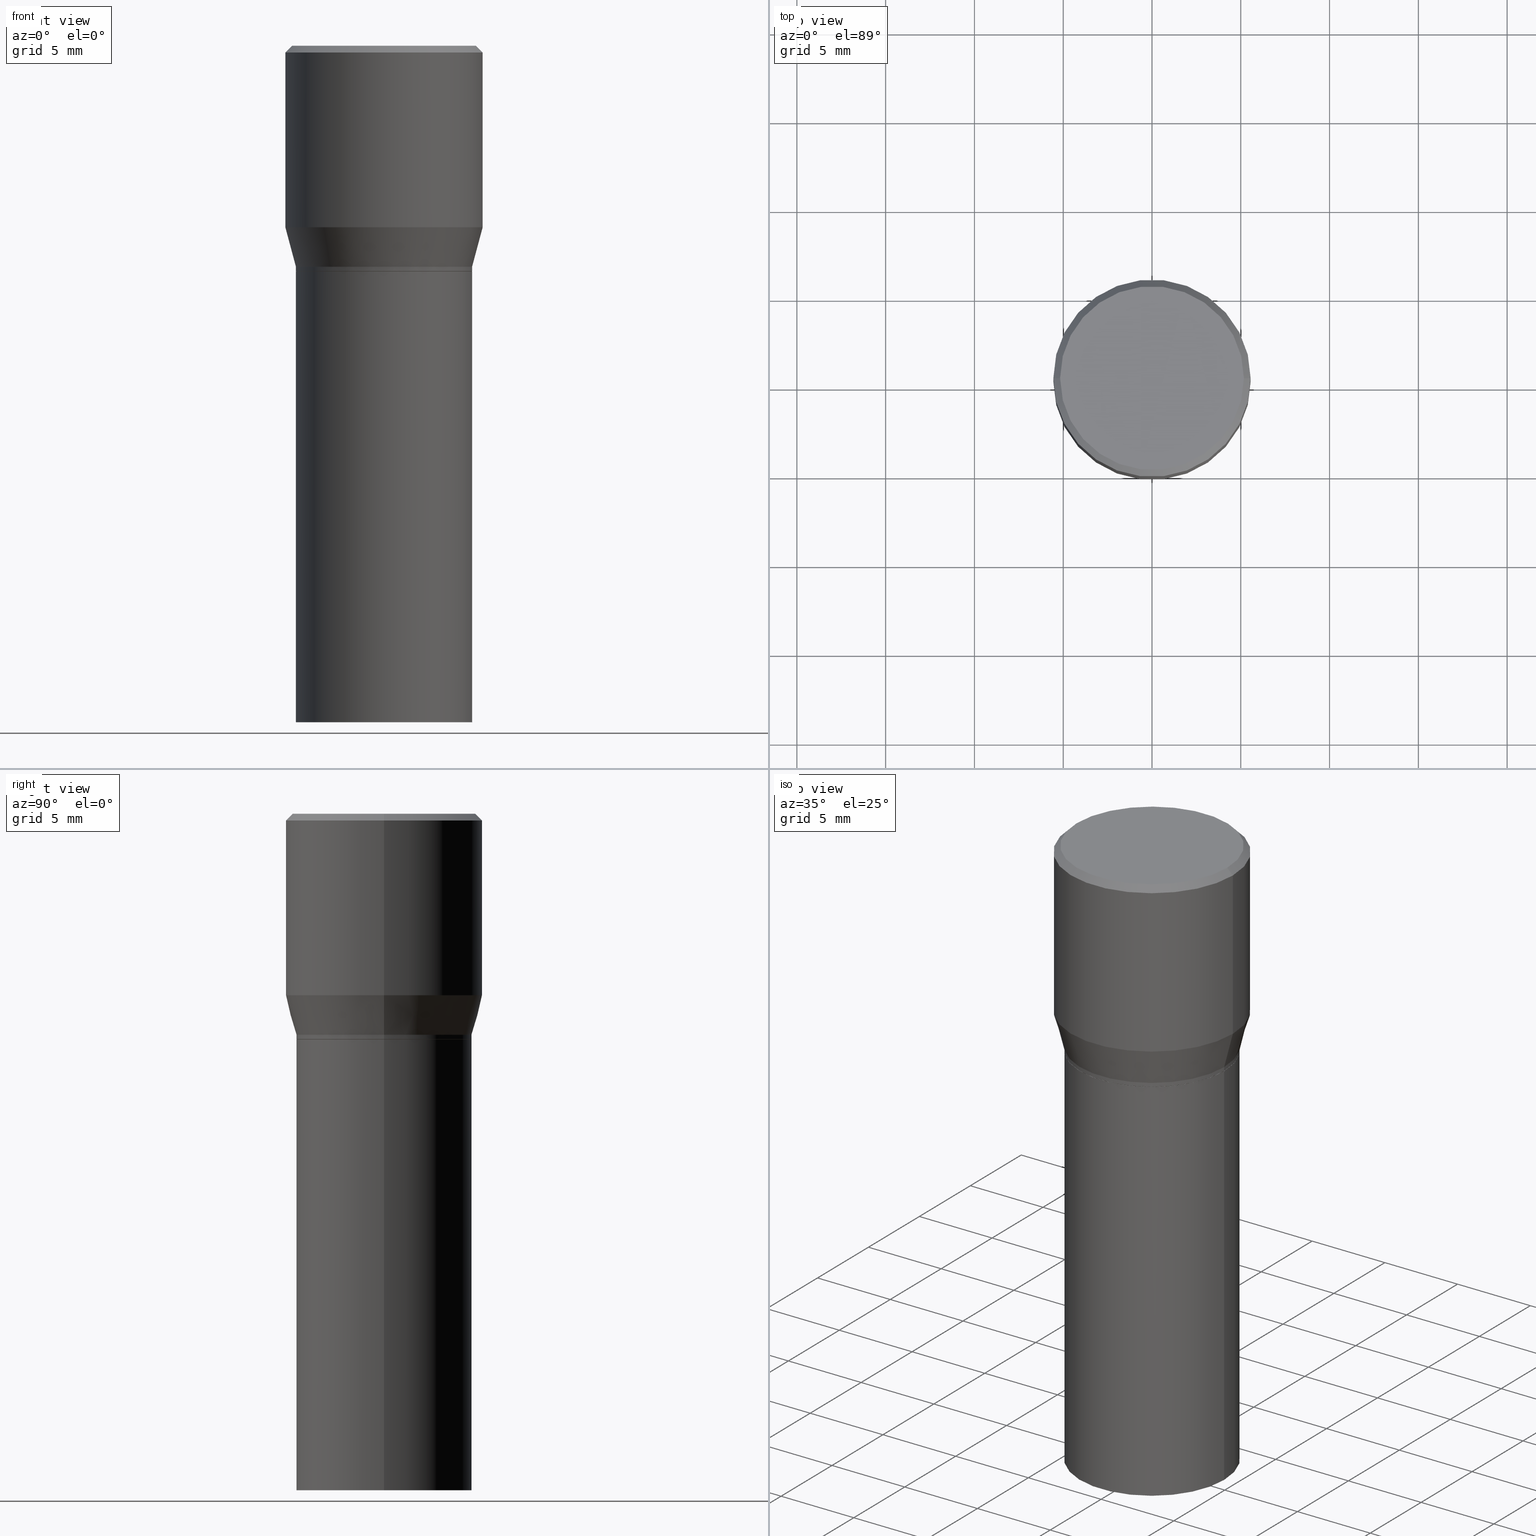
[diagram: canonical four-view strip — front | top / right | iso, engineering-drawing reading convention]
A machine part, canonical four-view strip (front | top / right | iso — engineering-drawing reading convention). The complete STEP part file that produces these views, byte-faithful:
ISO-10303-21;
HEADER;
FILE_DESCRIPTION (( 'STEP AP203' ),
    '1' );
FILE_NAME ('39749.STEP',
    '2024-03-12T19:07:14',
    ( '' ),
    ( '' ),
    'SwSTEP 2.0',
    'SolidWorks 2023',
    '' );
FILE_SCHEMA (( 'CONFIG_CONTROL_DESIGN' ));
ENDSEC;

DATA;
#1 = CARTESIAN_POINT ( 'NONE',  ( 0.1953000000000000014, -3.107767539704279377E-15, -0.4995000000000001661 ) ) ;
#2 = DIRECTION ( 'NONE',  ( 1.000000000000000000, -6.982962677686266711E-15, 0.000000000000000000 ) ) ;
#3 = VECTOR ( 'NONE', #344, 39.37007874015748143 ) ;
#4 = ORIENTED_EDGE ( 'NONE', *, *, #101, .T. ) ;
#5 = CARTESIAN_POINT ( 'NONE',  ( 3.668203209277705088E-31, -5.237222008264718399E-17, -0.01499999999999999944 ) ) ;
#6 = DATE_TIME_ROLE ( 'classification_date' ) ;
#7 = CC_DESIGN_PERSON_AND_ORGANIZATION_ASSIGNMENT ( #287, #460, ( #390 ) ) ;
#8 = DIRECTION ( 'NONE',  ( 1.000000000000000000, -6.982962677686265922E-15, 0.000000000000000000 ) ) ;
#9 = EDGE_CURVE ( 'NONE', #109, #106, #357, .T. ) ;
#10 = DIRECTION ( 'NONE',  ( -2.445468806185136597E-29, 3.491481338843145583E-15, 1.000000000000000000 ) ) ;
#11 = CARTESIAN_POINT ( 'NONE',  ( -0.1952999999999999736, -3.231358930936662090E-16, -0.4900000000000001021 ) ) ;
#12 = CONICAL_SURFACE ( 'NONE', #274, 0.1948000000000000009, 0.7853981633974824739 ) ;
#13 = CYLINDRICAL_SURFACE ( 'NONE', #62, 0.2187500000000000000 ) ;
#14 = AXIS2_PLACEMENT_3D ( 'NONE', #363, #222, #188 ) ;
#15 = DIRECTION ( 'NONE',  ( -2.445468806185136877E-29, 3.491481338843145188E-15, 1.000000000000000000 ) ) ;
#16 = CARTESIAN_POINT ( 'NONE',  ( 3.576687321579069994E-29, -5.368277968210015545E-15, -1.500000000000000222 ) ) ;
#17 = DIRECTION ( 'NONE',  ( -1.000000000000000000, 6.982962677686265922E-15, -4.876176775795935793E-29 ) ) ;
#18 = AXIS2_PLACEMENT_3D ( 'NONE', #5, #431, #2 ) ;
#19 = PRODUCT_DEFINITION ( 'UNKNOWN', '', #390, #168 ) ;
#20 = SHAPE_DEFINITION_REPRESENTATION ( #210, #451 ) ;
#21 = ADVANCED_FACE ( 'NONE', ( #328 ), #349, .T. ) ;
#22 = PERSON_AND_ORGANIZATION ( #195, #358 ) ;
#23 = ORIENTED_EDGE ( 'NONE', *, *, #181, .F. ) ;
#24 =( NAMED_UNIT ( * ) PLANE_ANGLE_UNIT ( ) SI_UNIT ( $, .RADIAN. ) );
#25 = DIRECTION ( 'NONE',  ( -2.445468806185136877E-29, 3.491481338843145188E-15, 1.000000000000000000 ) ) ;
#26 = DIRECTION ( 'NONE',  ( 0.000000000000000000, 0.000000000000000000, 1.000000000000000000 ) ) ;
#27 = ORIENTED_EDGE ( 'NONE', *, *, #111, .T. ) ;
#28 = ORIENTED_EDGE ( 'NONE', *, *, #181, .T. ) ;
#29 = APPLICATION_PROTOCOL_DEFINITION ( 'international standard', 'config_control_design', 1994, #52 ) ;
#30 = EDGE_CURVE ( 'NONE', #76, #145, #220, .T. ) ;
#31 = ORIENTED_EDGE ( 'NONE', *, *, #311, .F. ) ;
#32 = VERTEX_POINT ( 'NONE', #465 ) ;
#33 = LINE ( 'NONE', #182, #440 ) ;
#34 = FACE_OUTER_BOUND ( 'NONE', #403, .T. ) ;
#35 = CONICAL_SURFACE ( 'NONE', #105, 0.1948000000000000009, 0.7853981633974824739 ) ;
#36 = FACE_OUTER_BOUND ( 'NONE', #153, .T. ) ;
#37 = FACE_OUTER_BOUND ( 'NONE', #255, .T. ) ;
#38 = FACE_OUTER_BOUND ( 'NONE', #382, .T. ) ;
#39 = DIRECTION ( 'NONE',  ( 1.000000000000000000, -6.982962677686265922E-15, 0.000000000000000000 ) ) ;
#40 = CARTESIAN_POINT ( 'NONE',  ( -0.1953000000000000014, -3.563049658126762559E-16, -0.4995000000000001661 ) ) ;
#41 = CARTESIAN_POINT ( 'NONE',  ( 1.221511668689476057E-29, -1.743994928752151682E-15, -0.4995000000000001661 ) ) ;
#42 = PERSON_AND_ORGANIZATION_ROLE ( 'creator' ) ;
#43 = LOCAL_TIME ( 15, 7, 14.00000000000000000, #271 ) ;
#44 = CC_DESIGN_APPROVAL ( #292, ( #19 ) ) ;
#45 = EDGE_CURVE ( 'NONE', #282, #145, #366, .T. ) ;
#46 = DIRECTION ( 'NONE',  ( 1.000000000000000000, -6.982962677686269077E-15, 0.000000000000000000 ) ) ;
#47 = PERSON_AND_ORGANIZATION ( #195, #358 ) ;
#48 = CARTESIAN_POINT ( 'NONE',  ( 1.422778645578576487E-15, 0.2037499999999999867, -6.583817244785623957E-16 ) ) ;
#49 = DIRECTION ( 'NONE',  ( 0.7071067811865715536, -2.468850131082509496E-15, 0.7071067811865232589 ) ) ;
#50 = LINE ( 'NONE', #128, #388 ) ;
#51 = CARTESIAN_POINT ( 'NONE',  ( 0.000000000000000000, 0.000000000000000000, 0.000000000000000000 ) ) ;
#52 = APPLICATION_CONTEXT ( 'configuration controlled 3d designs of mechanical parts and assemblies' ) ;
#53 = LINE ( 'NONE', #374, #331 ) ;
#54 = LINE ( 'NONE', #167, #247 ) ;
#55 = DIRECTION ( 'NONE',  ( 1.000000000000000000, -6.982962677686265922E-15, 4.876176775795935793E-29 ) ) ;
#56 = DIRECTION ( 'NONE',  ( 1.000000000000000000, -6.982962677686266711E-15, 0.000000000000000000 ) ) ;
#57 = ORIENTED_EDGE ( 'NONE', *, *, #78, .F. ) ;
#58 = FACE_OUTER_BOUND ( 'NONE', #120, .T. ) ;
#59 = CC_DESIGN_PERSON_AND_ORGANIZATION_ASSIGNMENT ( #72, #190, ( #80 ) ) ;
#60 = APPROVAL_DATE_TIME ( #179, #292 ) ;
#61 = APPROVAL_PERSON_ORGANIZATION ( #172, #389, #270 ) ;
#62 = AXIS2_PLACEMENT_3D ( 'NONE', #163, #97, #159 ) ;
#63 = ADVANCED_FACE ( 'NONE', ( #213 ), #12, .T. ) ;
#64 = CIRCLE ( 'NONE', #79, 0.1952999999999999736 ) ;
#65 = MANIFOLD_SOLID_BREP ( 'Body-Move/Copy2[1]', #423 ) ;
#66 =( CONVERSION_BASED_UNIT ( 'INCH', #242 ) LENGTH_UNIT ( ) NAMED_UNIT ( #448 ) );
#67 = ORIENTED_EDGE ( 'NONE', *, *, #335, .T. ) ;
#68 = FACE_OUTER_BOUND ( 'NONE', #121, .T. ) ;
#69 = AXIS2_PLACEMENT_3D ( 'NONE', #191, #404, #8 ) ;
#70 = CIRCLE ( 'NONE', #131, 0.2037499999999999867 ) ;
#71 = ORIENTED_EDGE ( 'NONE', *, *, #241, .F. ) ;
#72 = PERSON_AND_ORGANIZATION ( #195, #358 ) ;
#73 = DIRECTION ( 'NONE',  ( -2.445468806185136597E-29, 3.491481338843145583E-15, 1.000000000000000000 ) ) ;
#74 = UNCERTAINTY_MEASURE_WITH_UNIT (LENGTH_MEASURE( 1.000000000000000082E-05 ), #66, 'distance_accuracy_value', 'NONE');
#75 = MANIFOLD_SOLID_BREP ( 'Body-Move/Copy2[2]', #86 ) ;
#76 = VERTEX_POINT ( 'NONE', #367 ) ;
#77 = DIRECTION ( 'NONE',  ( -0.7071067811865452413, 2.468850131082233000E-15, -0.7071067811865497932 ) ) ;
#78 = EDGE_CURVE ( 'NONE', #176, #156, #455, .T. ) ;
#79 = AXIS2_PLACEMENT_3D ( 'NONE', #251, #400, #39 ) ;
#80 = SECURITY_CLASSIFICATION ( '', '', #427 ) ;
#81 = ORIENTED_EDGE ( 'NONE', *, *, #437, .T. ) ;
#82 = CARTESIAN_POINT ( 'NONE',  ( -0.2187500000000000000, 1.475150865661223567E-15, -0.01499999999999999944 ) ) ;
#83 = ORIENTED_EDGE ( 'NONE', *, *, #415, .F. ) ;
#84 = DIRECTION ( 'NONE',  ( -2.445468806185136597E-29, 3.491481338843145583E-15, 1.000000000000000000 ) ) ;
#85 = ORIENTED_EDGE ( 'NONE', *, *, #241, .T. ) ;
#86 = CLOSED_SHELL ( 'NONE', ( #238, #63, #209, #114, #439, #89, #408, #21, #325, #144, #453, #161 ) ) ;
#87 = AXIS2_PLACEMENT_3D ( 'NONE', #343, #447, #130 ) ;
#88 = LINE ( 'NONE', #164, #267 ) ;
#89 = ADVANCED_FACE ( 'NONE', ( #38 ), #313, .T. ) ;
#90 = DIRECTION ( 'NONE',  ( -2.445468806185136877E-29, 3.491481338843145188E-15, 1.000000000000000000 ) ) ;
#91 = DIRECTION ( 'NONE',  ( -2.438088387897960049E-29, 3.491481338843145188E-15, 1.000000000000000000 ) ) ;
#92 = DIRECTION ( 'NONE',  ( 1.000000000000000000, -6.982962677686266711E-15, 4.876176775795935232E-29 ) ) ;
#93 = DIRECTION ( 'NONE',  ( 1.000000000000000000, -6.982962677686265922E-15, 4.876176775795935793E-29 ) ) ;
#94 = AXIS2_PLACEMENT_3D ( 'NONE', #456, #26, #108 ) ;
#95 = DIRECTION ( 'NONE',  ( 1.000000000000000000, -6.982962677686266711E-15, 4.875065411617369217E-29 ) ) ;
#96 = EDGE_LOOP ( 'NONE', ( #277, #266 ) ) ;
#97 = DIRECTION ( 'NONE',  ( -2.445468806185136597E-29, 3.491481338843145583E-15, 1.000000000000000000 ) ) ;
#98 = CARTESIAN_POINT ( 'NONE',  ( -0.1948000000000000009, -3.589541929867870625E-16, -0.5000000000000001110 ) ) ;
#99 = CALENDAR_DATE ( 2024, 12, 3 ) ;
#100 = CALENDAR_DATE ( 2024, 12, 3 ) ;
#101 = EDGE_CURVE ( 'NONE', #379, #422, #281, .T. ) ;
#102 = CC_DESIGN_PERSON_AND_ORGANIZATION_ASSIGNMENT ( #148, #42, ( #390 ) ) ;
#103 = DIRECTION ( 'NONE',  ( -2.445468806185136597E-29, 3.491481338843145583E-15, 1.000000000000000000 ) ) ;
#104 = APPLICATION_PROTOCOL_DEFINITION ( 'international standard', 'config_control_design', 1994, #239 ) ;
#105 = AXIS2_PLACEMENT_3D ( 'NONE', #177, #387, #352 ) ;
#106 = VERTEX_POINT ( 'NONE', #1 ) ;
#107 = DIRECTION ( 'NONE',  ( 1.000000000000000000, -6.982962677686267499E-15, 0.000000000000000000 ) ) ;
#108 = DIRECTION ( 'NONE',  ( 1.000000000000000000, 0.000000000000000000, 0.000000000000000000 ) ) ;
#109 = VERTEX_POINT ( 'NONE', #40 ) ;
#110 = VECTOR ( 'NONE', #348, 39.37007874015747433 ) ;
#111 = EDGE_CURVE ( 'NONE', #109, #32, #33, .T. ) ;
#112 = ORIENTED_EDGE ( 'NONE', *, *, #311, .T. ) ;
#113 = DATE_TIME_ROLE ( 'creation_date' ) ;
#114 = ADVANCED_FACE ( 'NONE', ( #36 ), #13, .T. ) ;
#115 = ORIENTED_EDGE ( 'NONE', *, *, #424, .F. ) ;
#116 = CARTESIAN_POINT ( 'NONE',  ( 3.668203209277705088E-31, -5.237222008264718399E-17, -0.01499999999999999944 ) ) ;
#117 = ORIENTED_EDGE ( 'NONE', *, *, #194, .T. ) ;
#118 = CONICAL_SURFACE ( 'NONE', #463, 0.1952999999999999736, 0.2617993877991501295 ) ;
#119 = VERTEX_POINT ( 'NONE', #383 ) ;
#120 = EDGE_LOOP ( 'NONE', ( #129, #395, #316, #354 ) ) ;
#121 = EDGE_LOOP ( 'NONE', ( #413, #112, #341, #221 ) ) ;
#122 = DIRECTION ( 'NONE',  ( 1.000000000000000000, -6.982962677686265922E-15, 0.000000000000000000 ) ) ;
#123 = EDGE_CURVE ( 'NONE', #312, #106, #416, .T. ) ;
#124 = DIRECTION ( 'NONE',  ( -2.438088387897960049E-29, 3.491481338843145188E-15, 1.000000000000000000 ) ) ;
#125 = APPROVAL_DATE_TIME ( #442, #192 ) ;
#126 = DIRECTION ( 'NONE',  ( -0.7071067811865715536, 7.493145998870439357E-15, 0.7071067811865232589 ) ) ;
#127 = FACE_OUTER_BOUND ( 'NONE', #96, .T. ) ;
#128 = CARTESIAN_POINT ( 'NONE',  ( 0.1952999999999999736, -1.363772610952127497E-15, 9.523173243129459375E-30 ) ) ;
#129 = ORIENTED_EDGE ( 'NONE', *, *, #272, .F. ) ;
#130 = DIRECTION ( 'NONE',  ( 1.000000000000000000, -6.982962677686265922E-15, 4.876176775795935793E-29 ) ) ;
#131 = AXIS2_PLACEMENT_3D ( 'NONE', #376, #230, #95 ) ;
#132 = CARTESIAN_POINT ( 'NONE',  ( 0.1953000000000000014, -3.109513280373700880E-15, -0.5000000000000001110 ) ) ;
#133 = APPROVAL_STATUS ( 'not_yet_approved' ) ;
#134 = PERSON_AND_ORGANIZATION_ROLE ( 'creator' ) ;
#135 = EDGE_LOOP ( 'NONE', ( #186, #259, #115, #288 ) ) ;
#136 = CC_DESIGN_PERSON_AND_ORGANIZATION_ASSIGNMENT ( #22, #356, ( #278 ) ) ;
#137 = AXIS2_PLACEMENT_3D ( 'NONE', #368, #291, #46 ) ;
#138 = AXIS2_PLACEMENT_3D ( 'NONE', #294, #323, #258 ) ;
#139 = ORIENTED_EDGE ( 'NONE', *, *, #30, .F. ) ;
#140 = DIRECTION ( 'NONE',  ( 1.000000000000000000, -6.982962677686266711E-15, 4.875065411617369217E-29 ) ) ;
#141 = PERSON_AND_ORGANIZATION ( #195, #358 ) ;
#142 = CC_DESIGN_PERSON_AND_ORGANIZATION_ASSIGNMENT ( #317, #134, ( #19 ) ) ;
#143 = ADVANCED_FACE ( 'NONE', ( #58 ), #378, .T. ) ;
#144 = ADVANCED_FACE ( 'NONE', ( #127 ), #333, .F. ) ;
#145 = VERTEX_POINT ( 'NONE', #411 ) ;
#146 = AXIS2_PLACEMENT_3D ( 'NONE', #308, #124, #55 ) ;
#147 = CIRCLE ( 'NONE', #401, 0.1953000000000000014 ) ;
#148 = PERSON_AND_ORGANIZATION ( #195, #358 ) ;
#149 = ADVANCED_FACE ( 'NONE', ( #201 ), #262, .F. ) ;
#150 = ORIENTED_EDGE ( 'NONE', *, *, #45, .T. ) ;
#151 = DIRECTION ( 'NONE',  ( -1.000000000000000000, 6.982962677686266711E-15, 0.000000000000000000 ) ) ;
#152 = FACE_OUTER_BOUND ( 'NONE', #446, .T. ) ;
#153 = EDGE_LOOP ( 'NONE', ( #175, #458, #208, #254 ) ) ;
#154 = AXIS2_PLACEMENT_3D ( 'NONE', #257, #326, #219 ) ;
#155 = APPROVAL_PERSON_ORGANIZATION ( #141, #292, #386 ) ;
#156 = VERTEX_POINT ( 'NONE', #228 ) ;
#157 = CARTESIAN_POINT ( 'NONE',  ( 0.2037499999999999867, -1.475466312070559275E-15, 1.060151966214670170E-16 ) ) ;
#158 = APPROVAL_DATE_TIME ( #396, #389 ) ;
#159 = DIRECTION ( 'NONE',  ( 1.000000000000000000, -6.982962677686266711E-15, 4.876176775795935232E-29 ) ) ;
#160 = CC_DESIGN_DATE_AND_TIME_ASSIGNMENT ( #203, #113, ( #19 ) ) ;
#161 = ADVANCED_FACE ( 'NONE', ( #264 ), #346, .T. ) ;
#162 = AXIS2_PLACEMENT_3D ( 'NONE', #253, #84, #435 ) ;
#163 = CARTESIAN_POINT ( 'NONE',  ( 0.000000000000000000, 0.000000000000000000, 0.000000000000000000 ) ) ;
#164 = CARTESIAN_POINT ( 'NONE',  ( 0.2187500000000000000, -1.553106157095169608E-15, -0.01499999999999999944 ) ) ;
#165 = LINE ( 'NONE', #410, #205 ) ;
#166 = ORIENTED_EDGE ( 'NONE', *, *, #200, .T. ) ;
#167 = CARTESIAN_POINT ( 'NONE',  ( -0.1953000000000000014, 1.387689962939475673E-15, -9.606680231267831797E-30 ) ) ;
#168 = DESIGN_CONTEXT ( 'detailed design', #52, 'design' ) ;
#169 = CYLINDRICAL_SURFACE ( 'NONE', #87, 0.1953000000000000014 ) ;
#170 = ADVANCED_FACE ( 'NONE', ( #380 ), #169, .T. ) ;
#171 = EDGE_CURVE ( 'NONE', #119, #32, #198, .T. ) ;
#172 = PERSON_AND_ORGANIZATION ( #195, #358 ) ;
#173 = AXIS2_PLACEMENT_3D ( 'NONE', #334, #199, #56 ) ;
#174 = LINE ( 'NONE', #304, #184 ) ;
#175 = ORIENTED_EDGE ( 'NONE', *, *, #232, .T. ) ;
#176 = VERTEX_POINT ( 'NONE', #196 ) ;
#177 = CARTESIAN_POINT ( 'NONE',  ( 1.222734403092568719E-29, -1.745740669421573186E-15, -0.5000000000000001110 ) ) ;
#178 = EDGE_LOOP ( 'NONE', ( #212, #235, #71, #231 ) ) ;
#179 = DATE_AND_TIME ( #211, #249 ) ;
#180 = ORIENTED_EDGE ( 'NONE', *, *, #111, .F. ) ;
#181 = EDGE_CURVE ( 'NONE', #392, #145, #276, .T. ) ;
#182 = CARTESIAN_POINT ( 'NONE',  ( -0.1952999999999999736, 1.387689962939475476E-15, -9.606680231267830396E-30 ) ) ;
#183 = CARTESIAN_POINT ( 'NONE',  ( 3.668203209277704895E-29, -5.237222008264718177E-15, -1.500000000000000222 ) ) ;
#184 = VECTOR ( 'NONE', #90, 39.37007874015748143 ) ;
#185 = EDGE_LOOP ( 'NONE', ( #57, #189 ) ) ;
#186 = ORIENTED_EDGE ( 'NONE', *, *, #78, .T. ) ;
#187 = DIRECTION ( 'NONE',  ( 1.000000000000000000, -6.982962677686267499E-15, 0.000000000000000000 ) ) ;
#188 = DIRECTION ( 'NONE',  ( -1.000000000000000000, 6.982962677686266711E-15, 0.000000000000000000 ) ) ;
#189 = ORIENTED_EDGE ( 'NONE', *, *, #206, .F. ) ;
#190 = PERSON_AND_ORGANIZATION_ROLE ( 'classification_officer' ) ;
#191 = CARTESIAN_POINT ( 'NONE',  ( 1.198279715030717173E-29, -1.710825856033141537E-15, -0.4900000000000001021 ) ) ;
#192 = APPROVAL ( #298, 'UNSPECIFIED' ) ;
#193 = CARTESIAN_POINT ( 'NONE',  ( 0.000000000000000000, 0.000000000000000000, 0.000000000000000000 ) ) ;
#194 = EDGE_CURVE ( 'NONE', #426, #312, #350, .T. ) ;
#195 = PERSON ( 'UNSPECIFIED', 'UNSPECIFIED', 'UNSPECIFIED', ('UNSPECIFIED'), ('UNSPECIFIED'), ('UNSPECIFIED') ) ;
#196 = CARTESIAN_POINT ( 'NONE',  ( 0.1953000000000000014, -6.600994619216846463E-15, -1.500000000000000222 ) ) ;
#197 = FACE_OUTER_BOUND ( 'NONE', #293, .T. ) ;
#198 = CIRCLE ( 'NONE', #425, 0.1952999999999999736 ) ;
#199 = DIRECTION ( 'NONE',  ( -2.445468806185136597E-29, 3.491481338843145583E-15, 1.000000000000000000 ) ) ;
#200 = EDGE_CURVE ( 'NONE', #32, #119, #64, .T. ) ;
#201 = FACE_OUTER_BOUND ( 'NONE', #185, .T. ) ;
#202 = DIRECTION ( 'NONE',  ( -2.445468806185136597E-29, 3.491481338843145583E-15, 1.000000000000000000 ) ) ;
#203 = DATE_AND_TIME ( #100, #43 ) ;
#204 = AXIS2_PLACEMENT_3D ( 'NONE', #16, #91, #93 ) ;
#205 = VECTOR ( 'NONE', #306, 39.37007874015747433 ) ;
#206 = EDGE_CURVE ( 'NONE', #156, #176, #295, .T. ) ;
#207 = VERTEX_POINT ( 'NONE', #157 ) ;
#208 = ORIENTED_EDGE ( 'NONE', *, *, #45, .F. ) ;
#209 = ADVANCED_FACE ( 'NONE', ( #152 ), #441, .T. ) ;
#210 = PRODUCT_DEFINITION_SHAPE ( 'NONE', 'NONE',  #19 ) ;
#211 = CALENDAR_DATE ( 2024, 12, 3 ) ;
#212 = ORIENTED_EDGE ( 'NONE', *, *, #444, .T. ) ;
#213 = FACE_OUTER_BOUND ( 'NONE', #178, .T. ) ;
#214 = DIRECTION ( 'NONE',  ( 1.000000000000000000, -6.982962677686269077E-15, 0.000000000000000000 ) ) ;
#215 = EDGE_LOOP ( 'NONE', ( #315, #81 ) ) ;
#216 = CARTESIAN_POINT ( 'NONE',  ( -0.2187500000000000000, 1.554312234475219157E-15, -1.076017050993260622E-29 ) ) ;
#217 = PLANE ( 'NONE',  #256 ) ;
#218 = AXIS2_PLACEMENT_3D ( 'NONE', #418, #103, #107 ) ;
#219 = DIRECTION ( 'NONE',  ( 1.000000000000000000, -6.982962677686265922E-15, 0.000000000000000000 ) ) ;
#220 = LINE ( 'NONE', #216, #419 ) ;
#221 = ORIENTED_EDGE ( 'NONE', *, *, #377, .F. ) ;
#222 = DIRECTION ( 'NONE',  ( 2.445468806185136597E-29, -3.491481338843145583E-15, -1.000000000000000000 ) ) ;
#223 = AXIS2_PLACEMENT_3D ( 'NONE', #250, #369, #371 ) ;
#224 = AXIS2_PLACEMENT_3D ( 'NONE', #384, #391, #140 ) ;
#225 = EDGE_CURVE ( 'NONE', #145, #282, #338, .T. ) ;
#226 = CARTESIAN_POINT ( 'NONE',  ( -0.1953000000000000014, -2.103791375903670501E-15, -0.5000000000000001110 ) ) ;
#227 = DIRECTION ( 'NONE',  ( -2.445468806185136597E-29, 3.491481338843145583E-15, 1.000000000000000000 ) ) ;
#228 = CARTESIAN_POINT ( 'NONE',  ( -0.1953000000000000014, -2.103791375903670501E-15, -1.500000000000000222 ) ) ;
#229 = COORDINATED_UNIVERSAL_TIME_OFFSET ( 5, 0, .BEHIND. ) ;
#230 = DIRECTION ( 'NONE',  ( -2.445468806185136597E-29, 3.491481338843145583E-15, 1.000000000000000000 ) ) ;
#231 = ORIENTED_EDGE ( 'NONE', *, *, #123, .F. ) ;
#232 = EDGE_CURVE ( 'NONE', #402, #76, #457, .T. ) ;
#233 = DIRECTION ( 'NONE',  ( -2.445468806185136597E-29, 3.491481338843145583E-15, 1.000000000000000000 ) ) ;
#234 = CARTESIAN_POINT ( 'NONE',  ( -0.2037499999999999867, 1.448964755619900421E-15, 1.060151966214468518E-16 ) ) ;
#235 = ORIENTED_EDGE ( 'NONE', *, *, #364, .T. ) ;
#236 = DIRECTION ( 'NONE',  ( 1.000000000000000000, -6.982962677686264344E-15, 0.000000000000000000 ) ) ;
#237 = APPROVAL_STATUS ( 'not_yet_approved' ) ;
#238 = ADVANCED_FACE ( 'NONE', ( #34 ), #285, .T. ) ;
#239 = APPLICATION_CONTEXT ( 'configuration controlled 3d designs of mechanical parts and assemblies' ) ;
#240 = VECTOR ( 'NONE', #49, 39.37007874015748854 ) ;
#241 = EDGE_CURVE ( 'NONE', #106, #109, #147, .T. ) ;
#242 = LENGTH_MEASURE_WITH_UNIT ( LENGTH_MEASURE( 0.02539999999999999897 ), #273 );
#243 = ORIENTED_EDGE ( 'NONE', *, *, #290, .T. ) ;
#244 = FACE_OUTER_BOUND ( 'NONE', #275, .T. ) ;
#245 = ORIENTED_EDGE ( 'NONE', *, *, #397, .F. ) ;
#246 = ORIENTED_EDGE ( 'NONE', *, *, #342, .F. ) ;
#247 = VECTOR ( 'NONE', #25, 39.37007874015748143 ) ;
#248 = CARTESIAN_POINT ( 'NONE',  ( 1.198279715030717173E-29, -1.710825856033141537E-15, -0.4900000000000001021 ) ) ;
#249 = LOCAL_TIME ( 15, 7, 14.00000000000000000, #279 ) ;
#250 = CARTESIAN_POINT ( 'NONE',  ( 3.668203209277705088E-31, -5.237222008264718399E-17, -0.01499999999999999944 ) ) ;
#251 = CARTESIAN_POINT ( 'NONE',  ( 1.198279715030717173E-29, -1.710825856033141537E-15, -0.4900000000000001021 ) ) ;
#252 = CARTESIAN_POINT ( 'NONE',  ( 1.222734403092568719E-29, -1.745740669421573186E-15, -0.5000000000000001110 ) ) ;
#253 = CARTESIAN_POINT ( 'NONE',  ( 0.000000000000000000, 0.000000000000000000, 0.000000000000000000 ) ) ;
#254 = ORIENTED_EDGE ( 'NONE', *, *, #290, .F. ) ;
#255 = EDGE_LOOP ( 'NONE', ( #318, #4 ) ) ;
#256 = AXIS2_PLACEMENT_3D ( 'NONE', #372, #336, #305 ) ;
#257 = CARTESIAN_POINT ( 'NONE',  ( 1.221511668689476057E-29, -1.743994928752151682E-15, -0.4995000000000001661 ) ) ;
#258 = DIRECTION ( 'NONE',  ( 1.000000000000000000, -6.982962677686266711E-15, 0.000000000000000000 ) ) ;
#259 = ORIENTED_EDGE ( 'NONE', *, *, #272, .T. ) ;
#260 = ADVANCED_FACE ( 'NONE', ( #37 ), #217, .F. ) ;
#261 = AXIS2_PLACEMENT_3D ( 'NONE', #297, #466, #289 ) ;
#262 = PLANE ( 'NONE',  #204 ) ;
#263 = FACE_OUTER_BOUND ( 'NONE', #215, .T. ) ;
#264 = FACE_OUTER_BOUND ( 'NONE', #280, .T. ) ;
#265 = LINE ( 'NONE', #11, #110 ) ;
#266 = ORIENTED_EDGE ( 'NONE', *, *, #194, .F. ) ;
#267 = VECTOR ( 'NONE', #449, 39.37007874015748143 ) ;
#268 = CARTESIAN_POINT ( 'NONE',  ( 1.198279715030717173E-29, -1.710825856033141537E-15, -0.4900000000000001021 ) ) ;
#269 = CARTESIAN_POINT ( 'NONE',  ( 1.222734403092568719E-29, -1.745740669421573186E-15, -0.5000000000000001110 ) ) ;
#270 = APPROVAL_ROLE ( '' ) ;
#271 = COORDINATED_UNIVERSAL_TIME_OFFSET ( 5, 0, .BEHIND. ) ;
#272 = EDGE_CURVE ( 'NONE', #156, #379, #54, .T. ) ;
#273 =( LENGTH_UNIT ( ) NAMED_UNIT ( * ) SI_UNIT ( $, .METRE. ) );
#274 = AXIS2_PLACEMENT_3D ( 'NONE', #252, #73, #187 ) ;
#275 = EDGE_LOOP ( 'NONE', ( #393, #117, #360, #430 ) ) ;
#276 = LINE ( 'NONE', #82, #414 ) ;
#277 = ORIENTED_EDGE ( 'NONE', *, *, #444, .F. ) ;
#278 = PRODUCT ( '39749', '39749', '', ( #353 ) ) ;
#279 = COORDINATED_UNIVERSAL_TIME_OFFSET ( 5, 0, .BEHIND. ) ;
#280 = EDGE_LOOP ( 'NONE', ( #180, #433, #67, #459 ) ) ;
#281 = CIRCLE ( 'NONE', #320, 0.1953000000000000014 ) ;
#282 = VERTEX_POINT ( 'NONE', #445 ) ;
#283 = CIRCLE ( 'NONE', #218, 0.1948000000000000009 ) ;
#284 = DIRECTION ( 'NONE',  ( -2.445468806185136597E-29, 3.491481338843145583E-15, 1.000000000000000000 ) ) ;
#285 = CYLINDRICAL_SURFACE ( 'NONE', #162, 0.1952999999999999736 ) ;
#286 = CC_DESIGN_APPROVAL ( #389, ( #390 ) ) ;
#287 = PERSON_AND_ORGANIZATION ( #195, #358 ) ;
#288 = ORIENTED_EDGE ( 'NONE', *, *, #347, .F. ) ;
#289 = DIRECTION ( 'NONE',  ( 1.000000000000000000, -6.982962677686267499E-15, 0.000000000000000000 ) ) ;
#290 = EDGE_CURVE ( 'NONE', #402, #282, #310, .T. ) ;
#291 = DIRECTION ( 'NONE',  ( -2.445468806185136597E-29, 3.491481338843145583E-15, 1.000000000000000000 ) ) ;
#292 = APPROVAL ( #237, 'UNSPECIFIED' ) ;
#293 = EDGE_LOOP ( 'NONE', ( #139, #307, #243, #322 ) ) ;
#294 = CARTESIAN_POINT ( 'NONE',  ( 9.842606206466859638E-30, -1.405263310189985589E-15, -0.4024834085625100810 ) ) ;
#295 = CIRCLE ( 'NONE', #394, 0.1953000000000000014 ) ;
#296 = DIRECTION ( 'NONE',  ( 2.445468806185136597E-29, -3.491481338843145583E-15, -1.000000000000000000 ) ) ;
#297 = CARTESIAN_POINT ( 'NONE',  ( 1.222734403092568719E-29, -1.745740669421573186E-15, -0.5000000000000001110 ) ) ;
#298 = APPROVAL_STATUS ( 'not_yet_approved' ) ;
#299 = DIRECTION ( 'NONE',  ( 1.000000000000000000, -6.982962677686265922E-15, 0.000000000000000000 ) ) ;
#300 = LOCAL_TIME ( 15, 7, 14.00000000000000000, #330 ) ;
#301 = PLANE ( 'NONE',  #407 ) ;
#302 = CIRCLE ( 'NONE', #224, 0.2037499999999999867 ) ;
#303 = DIRECTION ( 'NONE',  ( 1.000000000000000000, -6.982962677686265922E-15, 4.876176775795935793E-29 ) ) ;
#304 = CARTESIAN_POINT ( 'NONE',  ( 0.1953000000000000014, -1.363772610952127695E-15, 9.523173243129462177E-30 ) ) ;
#305 = DIRECTION ( 'NONE',  ( -1.000000000000000000, 6.982962677686265922E-15, -4.876176775795935793E-29 ) ) ;
#306 = DIRECTION ( 'NONE',  ( 0.2588190451025214611, 1.565188264969621573E-15, 0.9659258262890682012 ) ) ;
#307 = ORIENTED_EDGE ( 'NONE', *, *, #415, .T. ) ;
#308 = CARTESIAN_POINT ( 'NONE',  ( 1.222734403092568719E-29, -1.745740669421573186E-15, -0.5000000000000001110 ) ) ;
#309 = LOCAL_TIME ( 15, 7, 14.00000000000000000, #385 ) ;
#310 = LINE ( 'NONE', #337, #3 ) ;
#311 = EDGE_CURVE ( 'NONE', #32, #76, #265, .T. ) ;
#312 = VERTEX_POINT ( 'NONE', #412 ) ;
#313 = CONICAL_SURFACE ( 'NONE', #69, 0.1952999999999999736, 0.2617993877991501295 ) ;
#314 = CIRCLE ( 'NONE', #173, 0.2187500000000000000 ) ;
#315 = ORIENTED_EDGE ( 'NONE', *, *, #397, .T. ) ;
#316 = ORIENTED_EDGE ( 'NONE', *, *, #347, .T. ) ;
#317 = PERSON_AND_ORGANIZATION ( #195, #358 ) ;
#318 = ORIENTED_EDGE ( 'NONE', *, *, #424, .T. ) ;
#319 = APPROVAL_PERSON_ORGANIZATION ( #47, #192, #438 ) ;
#320 = AXIS2_PLACEMENT_3D ( 'NONE', #327, #284, #362 ) ;
#321 = AXIS2_PLACEMENT_3D ( 'NONE', #51, #233, #339 ) ;
#322 = ORIENTED_EDGE ( 'NONE', *, *, #225, .F. ) ;
#323 = DIRECTION ( 'NONE',  ( -2.445468806185136597E-29, 3.491481338843145583E-15, 1.000000000000000000 ) ) ;
#324 = CC_DESIGN_APPROVAL ( #192, ( #80 ) ) ;
#325 = ADVANCED_FACE ( 'NONE', ( #263 ), #301, .F. ) ;
#326 = DIRECTION ( 'NONE',  ( -2.445468806185136597E-29, 3.491481338843145583E-15, 1.000000000000000000 ) ) ;
#327 = CARTESIAN_POINT ( 'NONE',  ( 1.222734403092568719E-29, -1.745740669421573186E-15, -0.5000000000000001110 ) ) ;
#328 = FACE_OUTER_BOUND ( 'NONE', #359, .T. ) ;
#329 = DIRECTION ( 'NONE',  ( -2.445468806185136597E-29, 3.491481338843145583E-15, 1.000000000000000000 ) ) ;
#330 = COORDINATED_UNIVERSAL_TIME_OFFSET ( 5, 0, .BEHIND. ) ;
#331 = VECTOR ( 'NONE', #126, 39.37007874015748854 ) ;
#332 = ORIENTED_EDGE ( 'NONE', *, *, #335, .F. ) ;
#333 = PLANE ( 'NONE',  #146 ) ;
#334 = CARTESIAN_POINT ( 'NONE',  ( 9.842606206466859638E-30, -1.405263310189985589E-15, -0.4024834085625100810 ) ) ;
#335 = EDGE_CURVE ( 'NONE', #106, #119, #50, .T. ) ;
#336 = DIRECTION ( 'NONE',  ( 2.438088387897960049E-29, -3.491481338843145188E-15, -1.000000000000000000 ) ) ;
#337 = CARTESIAN_POINT ( 'NONE',  ( 0.2187500000000000000, -1.527523085743870843E-15, 1.066663669705360885E-29 ) ) ;
#338 = CIRCLE ( 'NONE', #18, 0.2187500000000000000 ) ;
#339 = DIRECTION ( 'NONE',  ( 1.000000000000000000, -6.982962677686265922E-15, 4.876176775795934672E-29 ) ) ;
#340 = DIRECTION ( 'NONE',  ( 2.438088387897960049E-29, -3.491481338843145188E-15, -1.000000000000000000 ) ) ;
#341 = ORIENTED_EDGE ( 'NONE', *, *, #232, .F. ) ;
#342 = EDGE_CURVE ( 'NONE', #207, #282, #88, .T. ) ;
#343 = CARTESIAN_POINT ( 'NONE',  ( 0.000000000000000000, 0.000000000000000000, 0.000000000000000000 ) ) ;
#344 = DIRECTION ( 'NONE',  ( -2.445468806185136877E-29, 3.491481338843145188E-15, 1.000000000000000000 ) ) ;
#345 = CC_DESIGN_DATE_AND_TIME_ASSIGNMENT ( #436, #6, ( #80 ) ) ;
#346 = CYLINDRICAL_SURFACE ( 'NONE', #321, 0.1952999999999999736 ) ;
#347 = EDGE_CURVE ( 'NONE', #176, #422, #174, .T. ) ;
#348 = DIRECTION ( 'NONE',  ( -0.2588190451025214611, 5.211531920934551042E-15, 0.9659258262890682012 ) ) ;
#349 = CONICAL_SURFACE ( 'NONE', #462, 0.2187500000000000000, 0.7853981633974450594 ) ;
#350 = CIRCLE ( 'NONE', #261, 0.1948000000000000009 ) ;
#351 = CALENDAR_DATE ( 2024, 12, 3 ) ;
#352 = DIRECTION ( 'NONE',  ( 1.000000000000000000, -6.982962677686267499E-15, 0.000000000000000000 ) ) ;
#353 = MECHANICAL_CONTEXT ( 'NONE', #239, 'mechanical' ) ;
#354 = ORIENTED_EDGE ( 'NONE', *, *, #101, .F. ) ;
#355 = DIRECTION ( 'NONE',  ( 1.000000000000000000, -6.982962677686265922E-15, 0.000000000000000000 ) ) ;
#356 = PERSON_AND_ORGANIZATION_ROLE ( 'design_owner' ) ;
#357 = CIRCLE ( 'NONE', #154, 0.1953000000000000014 ) ;
#358 = ORGANIZATION ( 'UNSPECIFIED', 'UNSPECIFIED', '' ) ;
#359 = EDGE_LOOP ( 'NONE', ( #246, #245, #28, #454 ) ) ;
#360 = ORIENTED_EDGE ( 'NONE', *, *, #123, .T. ) ;
#361 = DIRECTION ( 'NONE',  ( -2.445468806185136597E-29, 3.491481338843145583E-15, 1.000000000000000000 ) ) ;
#362 = DIRECTION ( 'NONE',  ( 1.000000000000000000, -6.982962677686264344E-15, 0.000000000000000000 ) ) ;
#363 = CARTESIAN_POINT ( 'NONE',  ( 3.668203209277705088E-31, -5.237222008264718399E-17, -0.01499999999999999944 ) ) ;
#364 = EDGE_CURVE ( 'NONE', #426, #109, #53, .T. ) ;
#365 = LOCAL_TIME ( 15, 7, 14.00000000000000000, #229 ) ;
#366 = CIRCLE ( 'NONE', #223, 0.2187500000000000000 ) ;
#367 = CARTESIAN_POINT ( 'NONE',  ( -0.2187500000000000000, 1.490489242852337896E-16, -0.4024834085625100810 ) ) ;
#368 = CARTESIAN_POINT ( 'NONE',  ( 3.668203209277704895E-29, -5.237222008264718177E-15, -1.500000000000000222 ) ) ;
#369 = DIRECTION ( 'NONE',  ( -2.445468806185136597E-29, 3.491481338843145583E-15, 1.000000000000000000 ) ) ;
#370 = PRODUCT_RELATED_PRODUCT_CATEGORY ( 'detail', '', ( #278 ) ) ;
#371 = DIRECTION ( 'NONE',  ( 1.000000000000000000, -6.982962677686266711E-15, 0.000000000000000000 ) ) ;
#372 = CARTESIAN_POINT ( 'NONE',  ( 1.363772610952139922E-15, 0.1952999999999982528, -0.5000000000000007772 ) ) ;
#373 = AXIS2_PLACEMENT_3D ( 'NONE', #193, #227, #92 ) ;
#374 = CARTESIAN_POINT ( 'NONE',  ( -0.1948000000000000009, -3.616034201608981156E-16, -0.5000000000000001110 ) ) ;
#375 = CARTESIAN_POINT ( 'NONE',  ( 0.1948000000000000009, -3.106021799034858268E-15, -0.5000000000000001110 ) ) ;
#376 = CARTESIAN_POINT ( 'NONE',  ( -2.592568563193567003E-45, 3.701500806376036554E-31, 1.060151966214568974E-16 ) ) ;
#377 = EDGE_CURVE ( 'NONE', #119, #402, #165, .T. ) ;
#378 = CYLINDRICAL_SURFACE ( 'NONE', #406, 0.1953000000000000014 ) ;
#379 = VERTEX_POINT ( 'NONE', #226 ) ;
#380 = FACE_OUTER_BOUND ( 'NONE', #135, .T. ) ;
#381 = CYLINDRICAL_SURFACE ( 'NONE', #373, 0.2187500000000000000 ) ;
#382 = EDGE_LOOP ( 'NONE', ( #31, #166, #434, #83 ) ) ;
#383 = CARTESIAN_POINT ( 'NONE',  ( 0.1952999999999999736, -3.074598466985269231E-15, -0.4900000000000001021 ) ) ;
#384 = CARTESIAN_POINT ( 'NONE',  ( -2.592568563193567003E-45, 3.701500806376036554E-31, 1.060151966214568974E-16 ) ) ;
#385 = COORDINATED_UNIVERSAL_TIME_OFFSET ( 5, 0, .BEHIND. ) ;
#386 = APPROVAL_ROLE ( '' ) ;
#387 = DIRECTION ( 'NONE',  ( -2.445468806185136597E-29, 3.491481338843145583E-15, 1.000000000000000000 ) ) ;
#388 = VECTOR ( 'NONE', #15, 39.37007874015748143 ) ;
#389 = APPROVAL ( #133, 'UNSPECIFIED' ) ;
#390 = PRODUCT_DEFINITION_FORMATION_WITH_SPECIFIED_SOURCE ( 'ANY', '', #278, .NOT_KNOWN. ) ;
#391 = DIRECTION ( 'NONE',  ( -2.445468806185136597E-29, 3.491481338843145583E-15, 1.000000000000000000 ) ) ;
#392 = VERTEX_POINT ( 'NONE', #234 ) ;
#393 = ORIENTED_EDGE ( 'NONE', *, *, #364, .F. ) ;
#394 = AXIS2_PLACEMENT_3D ( 'NONE', #183, #429, #214 ) ;
#395 = ORIENTED_EDGE ( 'NONE', *, *, #206, .T. ) ;
#396 = DATE_AND_TIME ( #99, #309 ) ;
#397 = EDGE_CURVE ( 'NONE', #392, #207, #70, .T. ) ;
#398 = DIRECTION ( 'NONE',  ( -2.445468806185136877E-29, 3.491481338843145188E-15, 1.000000000000000000 ) ) ;
#399 = ORIENTED_EDGE ( 'NONE', *, *, #171, .F. ) ;
#400 = DIRECTION ( 'NONE',  ( -2.445468806185136597E-29, 3.491481338843145583E-15, 1.000000000000000000 ) ) ;
#401 = AXIS2_PLACEMENT_3D ( 'NONE', #41, #329, #122 ) ;
#402 = VERTEX_POINT ( 'NONE', #409 ) ;
#403 = EDGE_LOOP ( 'NONE', ( #85, #27, #399, #332 ) ) ;
#404 = DIRECTION ( 'NONE',  ( -2.445468806185136597E-29, 3.491481338843145583E-15, 1.000000000000000000 ) ) ;
#405 = CALENDAR_DATE ( 2024, 12, 3 ) ;
#406 = AXIS2_PLACEMENT_3D ( 'NONE', #443, #202, #303 ) ;
#407 = AXIS2_PLACEMENT_3D ( 'NONE', #48, #340, #17 ) ;
#408 = ADVANCED_FACE ( 'NONE', ( #197 ), #381, .T. ) ;
#409 = CARTESIAN_POINT ( 'NONE',  ( 0.2187500000000000000, -2.932786395933856235E-15, -0.4024834085625100810 ) ) ;
#410 = CARTESIAN_POINT ( 'NONE',  ( 0.1952999999999999736, -3.074598466985269231E-15, -0.4900000000000001021 ) ) ;
#411 = CARTESIAN_POINT ( 'NONE',  ( -0.2187500000000000000, 8.254944693389027239E-16, -0.01499999999999999944 ) ) ;
#412 = CARTESIAN_POINT ( 'NONE',  ( 0.1948000000000000009, -3.106021799034858268E-15, -0.5000000000000001110 ) ) ;
#413 = ORIENTED_EDGE ( 'NONE', *, *, #171, .T. ) ;
#414 = VECTOR ( 'NONE', #77, 39.37007874015748143 ) ;
#415 = EDGE_CURVE ( 'NONE', #76, #402, #314, .T. ) ;
#416 = LINE ( 'NONE', #375, #240 ) ;
#417 = DIRECTION ( 'NONE',  ( -2.445468806185136597E-29, 3.491481338843145583E-15, 1.000000000000000000 ) ) ;
#418 = CARTESIAN_POINT ( 'NONE',  ( 1.222734403092568719E-29, -1.745740669421573186E-15, -0.5000000000000001110 ) ) ;
#419 = VECTOR ( 'NONE', #398, 39.37007874015748143 ) ;
#420 = AXIS2_PLACEMENT_3D ( 'NONE', #269, #417, #236 ) ;
#421 = CC_DESIGN_SECURITY_CLASSIFICATION ( #80, ( #390 ) ) ;
#422 = VERTEX_POINT ( 'NONE', #132 ) ;
#423 = CLOSED_SHELL ( 'NONE', ( #170, #149, #143, #260 ) ) ;
#424 = EDGE_CURVE ( 'NONE', #422, #379, #450, .T. ) ;
#425 = AXIS2_PLACEMENT_3D ( 'NONE', #268, #10, #299 ) ;
#426 = VERTEX_POINT ( 'NONE', #98 ) ;
#427 = SECURITY_CLASSIFICATION_LEVEL ( 'unclassified' ) ;
#428 = DIRECTION ( 'NONE',  ( -2.445468806185136877E-29, 3.491481338843145188E-15, 1.000000000000000000 ) ) ;
#429 = DIRECTION ( 'NONE',  ( -2.445468806185136597E-29, 3.491481338843145583E-15, 1.000000000000000000 ) ) ;
#430 = ORIENTED_EDGE ( 'NONE', *, *, #9, .F. ) ;
#431 = DIRECTION ( 'NONE',  ( -2.445468806185136597E-29, 3.491481338843145583E-15, 1.000000000000000000 ) ) ;
#432 =( GEOMETRIC_REPRESENTATION_CONTEXT ( 3 ) GLOBAL_UNCERTAINTY_ASSIGNED_CONTEXT ( ( #74 ) ) GLOBAL_UNIT_ASSIGNED_CONTEXT ( ( #66, #24, #452 ) ) REPRESENTATION_CONTEXT ( 'NONE', 'WORKASPACE' ) );
#433 = ORIENTED_EDGE ( 'NONE', *, *, #9, .T. ) ;
#434 = ORIENTED_EDGE ( 'NONE', *, *, #377, .T. ) ;
#435 = DIRECTION ( 'NONE',  ( 1.000000000000000000, -6.982962677686265922E-15, 4.876176775795934672E-29 ) ) ;
#436 = DATE_AND_TIME ( #405, #300 ) ;
#437 = EDGE_CURVE ( 'NONE', #207, #392, #302, .T. ) ;
#438 = APPROVAL_ROLE ( '' ) ;
#439 = ADVANCED_FACE ( 'NONE', ( #68 ), #118, .T. ) ;
#440 = VECTOR ( 'NONE', #428, 39.37007874015748143 ) ;
#441 = CONICAL_SURFACE ( 'NONE', #14, 0.2187500000000000000, 0.7853981633974450594 ) ;
#442 = DATE_AND_TIME ( #351, #365 ) ;
#443 = CARTESIAN_POINT ( 'NONE',  ( 0.000000000000000000, 0.000000000000000000, 0.000000000000000000 ) ) ;
#444 = EDGE_CURVE ( 'NONE', #312, #426, #283, .T. ) ;
#445 = CARTESIAN_POINT ( 'NONE',  ( 0.2187500000000000000, -1.579895305826517922E-15, -0.01499999999999999944 ) ) ;
#446 = EDGE_LOOP ( 'NONE', ( #461, #464, #150, #23 ) ) ;
#447 = DIRECTION ( 'NONE',  ( -2.445468806185136597E-29, 3.491481338843145583E-15, 1.000000000000000000 ) ) ;
#448 = DIMENSIONAL_EXPONENTS ( 1.000000000000000000, 0.000000000000000000, 0.000000000000000000, 0.000000000000000000, 0.000000000000000000, 0.000000000000000000, 0.000000000000000000 ) ;
#449 = DIRECTION ( 'NONE',  ( 0.7071067811865452413, -7.319954787623248157E-15, -0.7071067811865497932 ) ) ;
#450 = CIRCLE ( 'NONE', #420, 0.1953000000000000014 ) ;
#451 = ADVANCED_BREP_SHAPE_REPRESENTATION ( '39749', ( #65, #75, #94 ), #432 ) ;
#452 =( NAMED_UNIT ( * ) SI_UNIT ( $, .STERADIAN. ) SOLID_ANGLE_UNIT ( ) );
#453 = ADVANCED_FACE ( 'NONE', ( #244 ), #35, .T. ) ;
#454 = ORIENTED_EDGE ( 'NONE', *, *, #225, .T. ) ;
#455 = CIRCLE ( 'NONE', #137, 0.1953000000000000014 ) ;
#456 = CARTESIAN_POINT ( 'NONE',  ( 0.000000000000000000, 0.000000000000000000, 0.000000000000000000 ) ) ;
#457 = CIRCLE ( 'NONE', #138, 0.2187500000000000000 ) ;
#458 = ORIENTED_EDGE ( 'NONE', *, *, #30, .T. ) ;
#459 = ORIENTED_EDGE ( 'NONE', *, *, #200, .F. ) ;
#460 = PERSON_AND_ORGANIZATION_ROLE ( 'design_supplier' ) ;
#461 = ORIENTED_EDGE ( 'NONE', *, *, #437, .F. ) ;
#462 = AXIS2_PLACEMENT_3D ( 'NONE', #116, #296, #151 ) ;
#463 = AXIS2_PLACEMENT_3D ( 'NONE', #248, #361, #355 ) ;
#464 = ORIENTED_EDGE ( 'NONE', *, *, #342, .T. ) ;
#465 = CARTESIAN_POINT ( 'NONE',  ( -0.1952999999999999736, -8.704348440421619739E-17, -0.4900000000000001021 ) ) ;
#466 = DIRECTION ( 'NONE',  ( -2.445468806185136597E-29, 3.491481338843145583E-15, 1.000000000000000000 ) ) ;
ENDSEC;
END-ISO-10303-21;
